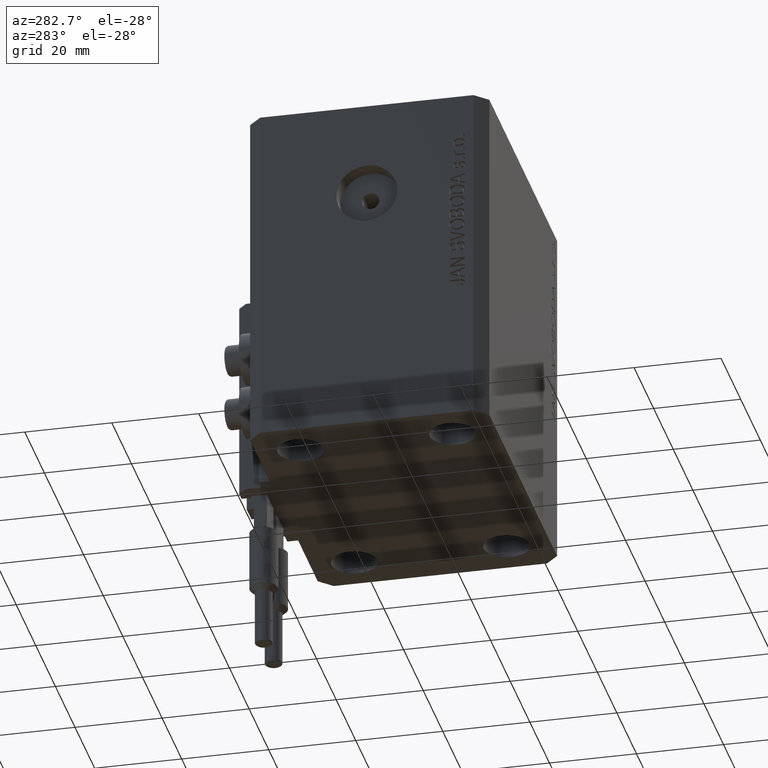
[diagram: clean part render]
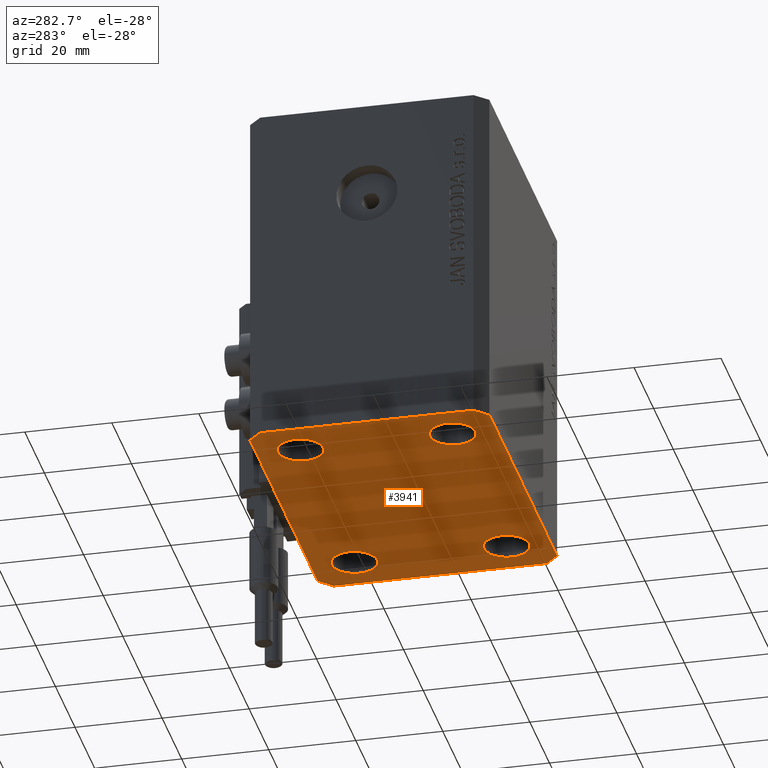
[diagram: same view with one face highlighted and labeled with its STEP entity id]
A machine part, auxiliary view. The second image highlights one B-rep face of the part: STEP entity #3941.
In plain terms, the highlighted planar face has unit normal (0, 0, 1).
Its self-contained STEP definition (entity closure, byte-faithful):
#167 = CARTESIAN_POINT ( 'NONE',  ( -27.50000000000000000, 17.49999999999999645, -80.00000000000000000 ) ) ;
#523 = CARTESIAN_POINT ( 'NONE',  ( 37.49999999999999289, -24.50000000000000000, -80.00000000000000000 ) ) ;
#653 = ORIENTED_EDGE ( 'NONE', *, *, #31561, .F. ) ;
#1266 = CIRCLE ( 'NONE', #5930, 5.250000000000000888 ) ;
#1315 = EDGE_CURVE ( 'NONE', #15103, #15301, #29450, .T. ) ;
#1631 = EDGE_CURVE ( 'NONE', #35695, #18250, #32890, .T. ) ;
#1831 = CARTESIAN_POINT ( 'NONE',  ( -32.75000000000000000, 17.49999999999999645, -80.00000000000000000 ) ) ;
#1851 = DIRECTION ( 'NONE',  ( 1.000000000000000000, 0.000000000000000000, 0.000000000000000000 ) ) ;
#1939 = ORIENTED_EDGE ( 'NONE', *, *, #31126, .F. ) ;
#2495 = VECTOR ( 'NONE', #10036, 1000.000000000000000 ) ;
#2773 = AXIS2_PLACEMENT_3D ( 'NONE', #32714, #47524, #10145 ) ;
#2902 = VECTOR ( 'NONE', #21555, 1000.000000000000000 ) ;
#3654 = VECTOR ( 'NONE', #18078, 1000.000000000000000 ) ;
#3896 = ORIENTED_EDGE ( 'NONE', *, *, #34145, .F. ) ;
#3941 = ADVANCED_FACE ( 'NONE', ( #36088, #39980, #19782, #20250, #13200 ), #16153, .F. ) ;
#4110 = CARTESIAN_POINT ( 'NONE',  ( 22.24999999999999289, -17.50000000000000000, -80.00000000000000000 ) ) ;
#5485 = LINE ( 'NONE', #42873, #31053 ) ;
#5588 = VERTEX_POINT ( 'NONE', #27110 ) ;
#5930 = AXIS2_PLACEMENT_3D ( 'NONE', #38114, #42702, #45868 ) ;
#6063 = DIRECTION ( 'NONE',  ( -0.000000000000000000, -0.000000000000000000, -1.000000000000000000 ) ) ;
#6543 = CARTESIAN_POINT ( 'NONE',  ( -22.25000000000000000, 17.49999999999999645, -80.00000000000000000 ) ) ;
#6839 = CARTESIAN_POINT ( 'NONE',  ( -37.49999999999999289, 24.50000000000000000, -80.00000000000000000 ) ) ;
#7494 = VECTOR ( 'NONE', #16755, 1000.000000000000000 ) ;
#8636 = DIRECTION ( 'NONE',  ( 1.000000000000000000, 0.000000000000000000, 0.000000000000000000 ) ) ;
#8761 = CARTESIAN_POINT ( 'NONE',  ( -34.49999999999999289, 27.50000000000000000, -80.00000000000000000 ) ) ;
#8902 = DIRECTION ( 'NONE',  ( -1.000000000000000000, 0.000000000000000000, 0.000000000000000000 ) ) ;
#9063 = ORIENTED_EDGE ( 'NONE', *, *, #1315, .F. ) ;
#10036 = DIRECTION ( 'NONE',  ( -0.7071067811865471286, -0.7071067811865479058, 0.000000000000000000 ) ) ;
#10145 = DIRECTION ( 'NONE',  ( 1.000000000000000000, 0.000000000000000000, 0.000000000000000000 ) ) ;
#11187 = CIRCLE ( 'NONE', #31360, 5.250000000000000888 ) ;
#11822 = VERTEX_POINT ( 'NONE', #6543 ) ;
#12181 = EDGE_CURVE ( 'NONE', #48036, #31268, #21078, .T. ) ;
#12806 = LINE ( 'NONE', #42418, #26012 ) ;
#13098 = LINE ( 'NONE', #45644, #7494 ) ;
#13129 = CARTESIAN_POINT ( 'NONE',  ( -27.49999999999999289, -17.50000000000000000, -80.00000000000000000 ) ) ;
#13200 = FACE_OUTER_BOUND ( 'NONE', #44667, .T. ) ;
#13261 = EDGE_CURVE ( 'NONE', #24001, #15103, #36867, .T. ) ;
#13884 = CARTESIAN_POINT ( 'NONE',  ( -22.24999999999999289, -17.50000000000000000, -80.00000000000000000 ) ) ;
#14476 = DIRECTION ( 'NONE',  ( -0.000000000000000000, -0.000000000000000000, -1.000000000000000000 ) ) ;
#14876 = CARTESIAN_POINT ( 'NONE',  ( -34.49999999999998579, -27.49999999999999645, -80.00000000000000000 ) ) ;
#14907 = AXIS2_PLACEMENT_3D ( 'NONE', #35112, #43761, #1851 ) ;
#15103 = VERTEX_POINT ( 'NONE', #523 ) ;
#15112 = CARTESIAN_POINT ( 'NONE',  ( -37.49999999999999289, -24.50000000000000000, -80.00000000000000000 ) ) ;
#15301 = VERTEX_POINT ( 'NONE', #40275 ) ;
#16153 = PLANE ( 'NONE',  #16717 ) ;
#16383 = DIRECTION ( 'NONE',  ( 0.000000000000000000, 0.000000000000000000, 1.000000000000000000 ) ) ;
#16491 = EDGE_CURVE ( 'NONE', #18677, #19811, #36010, .T. ) ;
#16580 = ORIENTED_EDGE ( 'NONE', *, *, #20146, .F. ) ;
#16640 = CIRCLE ( 'NONE', #19751, 5.250000000000000888 ) ;
#16717 = AXIS2_PLACEMENT_3D ( 'NONE', #46228, #16383, #24364 ) ;
#16738 = ORIENTED_EDGE ( 'NONE', *, *, #37869, .F. ) ;
#16755 = DIRECTION ( 'NONE',  ( 0.7071067811865483499, -0.7071067811865466846, 0.000000000000000000 ) ) ;
#17354 = AXIS2_PLACEMENT_3D ( 'NONE', #29061, #31975, #21047 ) ;
#17396 = VECTOR ( 'NONE', #19257, 1000.000000000000000 ) ;
#17676 = LINE ( 'NONE', #21794, #2902 ) ;
#17731 = DIRECTION ( 'NONE',  ( 1.000000000000000000, 0.000000000000000000, 0.000000000000000000 ) ) ;
#18078 = DIRECTION ( 'NONE',  ( 1.000000000000000000, 0.000000000000000000, 0.000000000000000000 ) ) ;
#18250 = VERTEX_POINT ( 'NONE', #39704 ) ;
#18677 = VERTEX_POINT ( 'NONE', #8761 ) ;
#19122 = DIRECTION ( 'NONE',  ( -0.000000000000000000, -0.000000000000000000, -1.000000000000000000 ) ) ;
#19257 = DIRECTION ( 'NONE',  ( 1.076236605503979380E-14, 1.000000000000000000, 0.000000000000000000 ) ) ;
#19564 = DIRECTION ( 'NONE',  ( -0.000000000000000000, -0.000000000000000000, -1.000000000000000000 ) ) ;
#19751 = AXIS2_PLACEMENT_3D ( 'NONE', #13129, #6063, #17731 ) ;
#19782 = FACE_BOUND ( 'NONE', #26206, .T. ) ;
#19811 = VERTEX_POINT ( 'NONE', #6839 ) ;
#20146 = EDGE_CURVE ( 'NONE', #5588, #34796, #22033, .T. ) ;
#20250 = FACE_BOUND ( 'NONE', #37384, .T. ) ;
#20764 = EDGE_CURVE ( 'NONE', #34796, #5588, #16640, .T. ) ;
#20786 = DIRECTION ( 'NONE',  ( -0.7071067811865364705, 0.7071067811865584529, 0.000000000000000000 ) ) ;
#21047 = DIRECTION ( 'NONE',  ( 1.000000000000000000, 0.000000000000000000, 0.000000000000000000 ) ) ;
#21078 = CIRCLE ( 'NONE', #14907, 5.250000000000000888 ) ;
#21248 = EDGE_CURVE ( 'NONE', #11822, #34229, #11187, .T. ) ;
#21412 = VERTEX_POINT ( 'NONE', #14876 ) ;
#21555 = DIRECTION ( 'NONE',  ( 0.000000000000000000, -1.000000000000000000, 0.000000000000000000 ) ) ;
#21794 = CARTESIAN_POINT ( 'NONE',  ( -37.49999999999999289, 24.50000000000000000, -80.00000000000000000 ) ) ;
#22033 = CIRCLE ( 'NONE', #17354, 5.250000000000000888 ) ;
#22537 = DIRECTION ( 'NONE',  ( 0.7071067811865474617, 0.7071067811865474617, 0.000000000000000000 ) ) ;
#22855 = EDGE_CURVE ( 'NONE', #15301, #41626, #12806, .T. ) ;
#22904 = CARTESIAN_POINT ( 'NONE',  ( 37.49999999999999289, -24.50000000000000000, -80.00000000000000000 ) ) ;
#23737 = CIRCLE ( 'NONE', #2773, 5.250000000000000888 ) ;
#24001 = VERTEX_POINT ( 'NONE', #28711 ) ;
#24027 = EDGE_LOOP ( 'NONE', ( #28557, #41560 ) ) ;
#24364 = DIRECTION ( 'NONE',  ( 1.000000000000000000, 0.000000000000000000, -0.000000000000000000 ) ) ;
#25332 = CARTESIAN_POINT ( 'NONE',  ( -34.49999999999999289, 27.50000000000000000, -80.00000000000000000 ) ) ;
#25935 = CARTESIAN_POINT ( 'NONE',  ( 34.49999999999999289, -27.49999999999999645, -80.00000000000000000 ) ) ;
#26012 = VECTOR ( 'NONE', #20786, 1000.000000000000114 ) ;
#26079 = CARTESIAN_POINT ( 'NONE',  ( -34.49999999999998579, -27.49999999999999645, -80.00000000000000000 ) ) ;
#26206 = EDGE_LOOP ( 'NONE', ( #16738, #44726 ) ) ;
#26502 = ORIENTED_EDGE ( 'NONE', *, *, #20764, .F. ) ;
#27082 = CARTESIAN_POINT ( 'NONE',  ( 27.50000000000000000, 17.49999999999999289, -80.00000000000000000 ) ) ;
#27110 = CARTESIAN_POINT ( 'NONE',  ( -32.74999999999999289, -17.50000000000000000, -80.00000000000000000 ) ) ;
#27970 = VECTOR ( 'NONE', #22537, 1000.000000000000114 ) ;
#28557 = ORIENTED_EDGE ( 'NONE', *, *, #29366, .F. ) ;
#28711 = CARTESIAN_POINT ( 'NONE',  ( 34.49999999999999289, -27.49999999999999645, -80.00000000000000000 ) ) ;
#28779 = CARTESIAN_POINT ( 'NONE',  ( 27.50000000000000000, 17.49999999999999289, -80.00000000000000000 ) ) ;
#29061 = CARTESIAN_POINT ( 'NONE',  ( -27.49999999999999289, -17.50000000000000000, -80.00000000000000000 ) ) ;
#29339 = CARTESIAN_POINT ( 'NONE',  ( 32.74999999999999289, -17.50000000000000000, -80.00000000000000000 ) ) ;
#29366 = EDGE_CURVE ( 'NONE', #31268, #48036, #23737, .T. ) ;
#29450 = LINE ( 'NONE', #22904, #17396 ) ;
#30314 = EDGE_CURVE ( 'NONE', #34229, #11822, #1266, .T. ) ;
#31053 = VECTOR ( 'NONE', #8902, 1000.000000000000000 ) ;
#31126 = EDGE_CURVE ( 'NONE', #44901, #21412, #13098, .T. ) ;
#31268 = VERTEX_POINT ( 'NONE', #29339 ) ;
#31360 = AXIS2_PLACEMENT_3D ( 'NONE', #167, #19122, #33926 ) ;
#31561 = EDGE_CURVE ( 'NONE', #21412, #24001, #44292, .T. ) ;
#31975 = DIRECTION ( 'NONE',  ( -0.000000000000000000, -0.000000000000000000, -1.000000000000000000 ) ) ;
#32546 = ORIENTED_EDGE ( 'NONE', *, *, #40224, .F. ) ;
#32714 = CARTESIAN_POINT ( 'NONE',  ( 27.49999999999999289, -17.50000000000000000, -80.00000000000000000 ) ) ;
#32890 = CIRCLE ( 'NONE', #43088, 5.250000000000000888 ) ;
#33926 = DIRECTION ( 'NONE',  ( 1.000000000000000000, 0.000000000000000000, 0.000000000000000000 ) ) ;
#34145 = EDGE_CURVE ( 'NONE', #19811, #44901, #17676, .T. ) ;
#34229 = VERTEX_POINT ( 'NONE', #1831 ) ;
#34439 = ORIENTED_EDGE ( 'NONE', *, *, #22855, .F. ) ;
#34796 = VERTEX_POINT ( 'NONE', #13884 ) ;
#35112 = CARTESIAN_POINT ( 'NONE',  ( 27.49999999999999289, -17.50000000000000000, -80.00000000000000000 ) ) ;
#35695 = VERTEX_POINT ( 'NONE', #46609 ) ;
#36010 = LINE ( 'NONE', #25332, #2495 ) ;
#36088 = FACE_BOUND ( 'NONE', #43696, .T. ) ;
#36307 = DIRECTION ( 'NONE',  ( 1.000000000000000000, 0.000000000000000000, 0.000000000000000000 ) ) ;
#36867 = LINE ( 'NONE', #25935, #27970 ) ;
#37384 = EDGE_LOOP ( 'NONE', ( #40288, #37960 ) ) ;
#37869 = EDGE_CURVE ( 'NONE', #18250, #35695, #40359, .T. ) ;
#37960 = ORIENTED_EDGE ( 'NONE', *, *, #30314, .F. ) ;
#38114 = CARTESIAN_POINT ( 'NONE',  ( -27.50000000000000000, 17.49999999999999645, -80.00000000000000000 ) ) ;
#39704 = CARTESIAN_POINT ( 'NONE',  ( 32.75000000000000000, 17.49999999999999289, -80.00000000000000000 ) ) ;
#39980 = FACE_BOUND ( 'NONE', #24027, .T. ) ;
#40224 = EDGE_CURVE ( 'NONE', #41626, #18677, #5485, .T. ) ;
#40275 = CARTESIAN_POINT ( 'NONE',  ( 37.50000000000051870, 24.49999999999995381, -80.00000000000000000 ) ) ;
#40288 = ORIENTED_EDGE ( 'NONE', *, *, #21248, .F. ) ;
#40359 = CIRCLE ( 'NONE', #42686, 5.250000000000000888 ) ;
#41560 = ORIENTED_EDGE ( 'NONE', *, *, #12181, .F. ) ;
#41626 = VERTEX_POINT ( 'NONE', #47839 ) ;
#42418 = CARTESIAN_POINT ( 'NONE',  ( 37.50000000000051870, 24.49999999999995381, -80.00000000000000000 ) ) ;
#42686 = AXIS2_PLACEMENT_3D ( 'NONE', #27082, #19564, #8636 ) ;
#42702 = DIRECTION ( 'NONE',  ( -0.000000000000000000, -0.000000000000000000, -1.000000000000000000 ) ) ;
#42873 = CARTESIAN_POINT ( 'NONE',  ( 34.50000000000056843, 27.50000000000000000, -80.00000000000000000 ) ) ;
#43088 = AXIS2_PLACEMENT_3D ( 'NONE', #28779, #14476, #36307 ) ;
#43696 = EDGE_LOOP ( 'NONE', ( #26502, #16580 ) ) ;
#43761 = DIRECTION ( 'NONE',  ( -0.000000000000000000, -0.000000000000000000, -1.000000000000000000 ) ) ;
#44221 = ORIENTED_EDGE ( 'NONE', *, *, #13261, .F. ) ;
#44292 = LINE ( 'NONE', #26079, #3654 ) ;
#44667 = EDGE_LOOP ( 'NONE', ( #32546, #34439, #9063, #44221, #653, #1939, #3896, #45004 ) ) ;
#44726 = ORIENTED_EDGE ( 'NONE', *, *, #1631, .F. ) ;
#44901 = VERTEX_POINT ( 'NONE', #15112 ) ;
#45004 = ORIENTED_EDGE ( 'NONE', *, *, #16491, .F. ) ;
#45644 = CARTESIAN_POINT ( 'NONE',  ( -37.49999999999999289, -24.50000000000000000, -80.00000000000000000 ) ) ;
#45868 = DIRECTION ( 'NONE',  ( 1.000000000000000000, 0.000000000000000000, 0.000000000000000000 ) ) ;
#46228 = CARTESIAN_POINT ( 'NONE',  ( 0.000000000000000000, 0.000000000000000000, -80.00000000000000000 ) ) ;
#46609 = CARTESIAN_POINT ( 'NONE',  ( 22.25000000000000000, 17.49999999999999289, -80.00000000000000000 ) ) ;
#47524 = DIRECTION ( 'NONE',  ( -0.000000000000000000, -0.000000000000000000, -1.000000000000000000 ) ) ;
#47839 = CARTESIAN_POINT ( 'NONE',  ( 34.50000000000056843, 27.50000000000000000, -80.00000000000000000 ) ) ;
#48036 = VERTEX_POINT ( 'NONE', #4110 ) ;